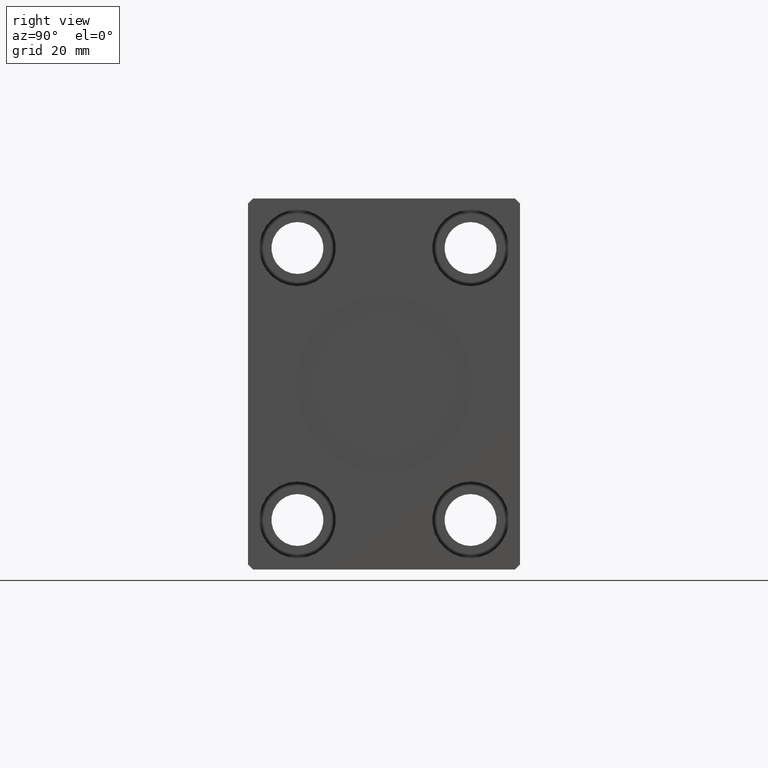
[diagram: clean part render]
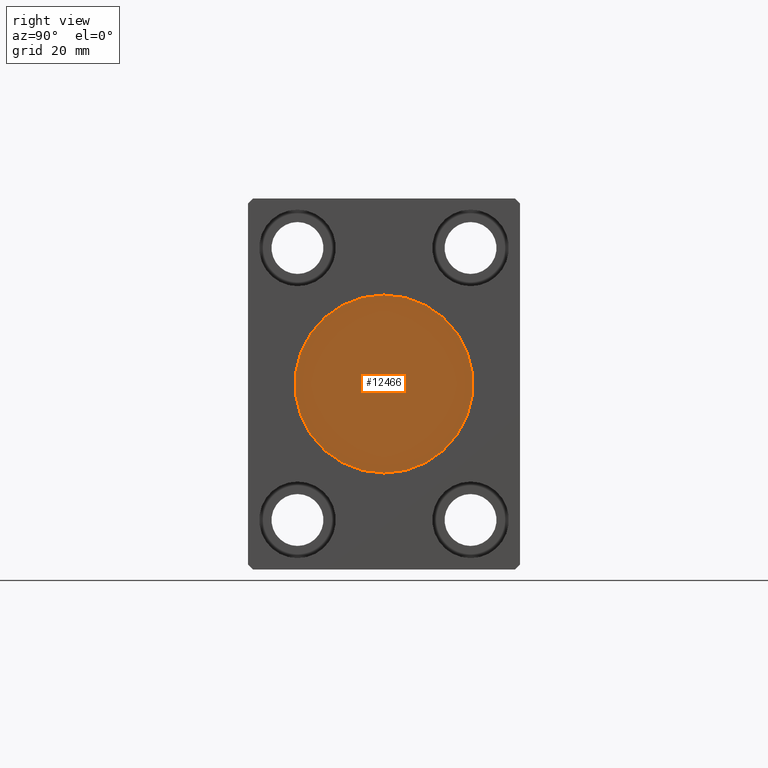
[diagram: same view with one face highlighted and labeled with its STEP entity id]
A machine part, right view. The second image highlights one B-rep face of the part: STEP entity #12466.
In plain terms, the highlighted planar face has unit normal (1, 0, 0).
Its self-contained STEP definition (entity closure, byte-faithful):
#1982 = CIRCLE ( 'NONE', #24012, 18.00000000000000000 ) ;
#3009 = VERTEX_POINT ( 'NONE', #5219 ) ;
#3674 = CARTESIAN_POINT ( 'NONE',  ( 114.7999999999999972, 2.204364238465235428E-15, 18.00000000000000000 ) ) ;
#3953 = DIRECTION ( 'NONE',  ( 0.000000000000000000, 0.000000000000000000, -1.000000000000000000 ) ) ;
#3957 = EDGE_LOOP ( 'NONE', ( #22495, #36291 ) ) ;
#5219 = CARTESIAN_POINT ( 'NONE',  ( 114.7999999999999972, 0.000000000000000000, -18.00000000000000000 ) ) ;
#5719 = AXIS2_PLACEMENT_3D ( 'NONE', #10268, #23421, #19545 ) ;
#6102 = AXIS2_PLACEMENT_3D ( 'NONE', #34457, #11788, #24949 ) ;
#7725 = VERTEX_POINT ( 'NONE', #3674 ) ;
#10268 = CARTESIAN_POINT ( 'NONE',  ( 114.7999999999999972, 0.000000000000000000, 0.000000000000000000 ) ) ;
#11788 = DIRECTION ( 'NONE',  ( 1.000000000000000000, 0.000000000000000000, 0.000000000000000000 ) ) ;
#11934 = EDGE_CURVE ( 'NONE', #3009, #7725, #1982, .T. ) ;
#12466 = ADVANCED_FACE ( 'NONE', ( #17852 ), #21292, .T. ) ;
#17852 = FACE_OUTER_BOUND ( 'NONE', #3957, .T. ) ;
#19545 = DIRECTION ( 'NONE',  ( 0.000000000000000000, 0.000000000000000000, -1.000000000000000000 ) ) ;
#21292 = PLANE ( 'NONE',  #6102 ) ;
#22495 = ORIENTED_EDGE ( 'NONE', *, *, #11934, .T. ) ;
#23421 = DIRECTION ( 'NONE',  ( 1.000000000000000000, 0.000000000000000000, 0.000000000000000000 ) ) ;
#23771 = CARTESIAN_POINT ( 'NONE',  ( 114.7999999999999972, 0.000000000000000000, 0.000000000000000000 ) ) ;
#24012 = AXIS2_PLACEMENT_3D ( 'NONE', #23771, #33483, #3953 ) ;
#24949 = DIRECTION ( 'NONE',  ( 0.000000000000000000, 0.000000000000000000, -1.000000000000000000 ) ) ;
#26294 = EDGE_CURVE ( 'NONE', #7725, #3009, #26364, .T. ) ;
#26364 = CIRCLE ( 'NONE', #5719, 18.00000000000000000 ) ;
#33483 = DIRECTION ( 'NONE',  ( 1.000000000000000000, 0.000000000000000000, 0.000000000000000000 ) ) ;
#34457 = CARTESIAN_POINT ( 'NONE',  ( 114.7999999999999972, 0.000000000000000000, 0.000000000000000000 ) ) ;
#36291 = ORIENTED_EDGE ( 'NONE', *, *, #26294, .T. ) ;